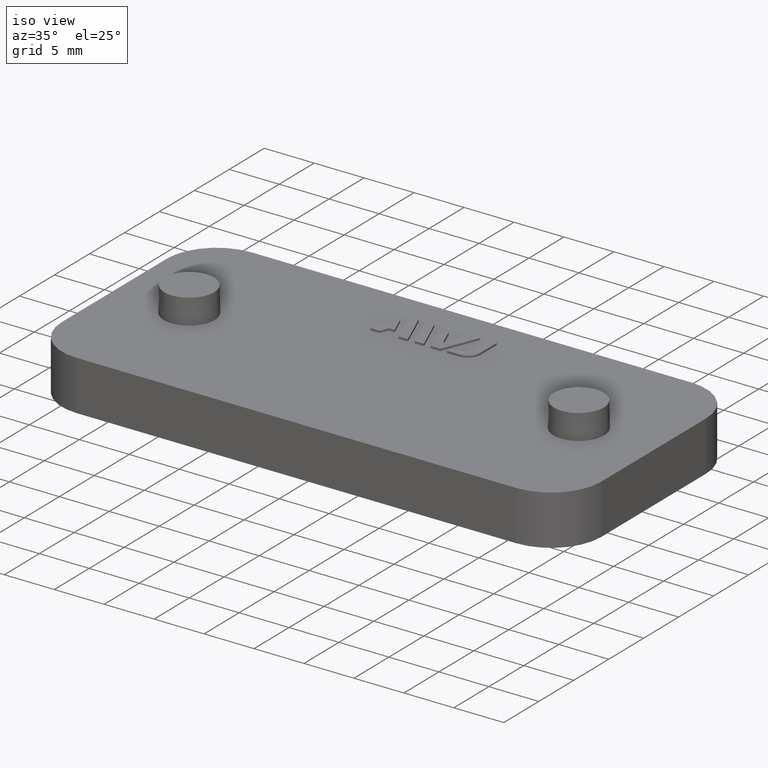
[diagram: clean part render]
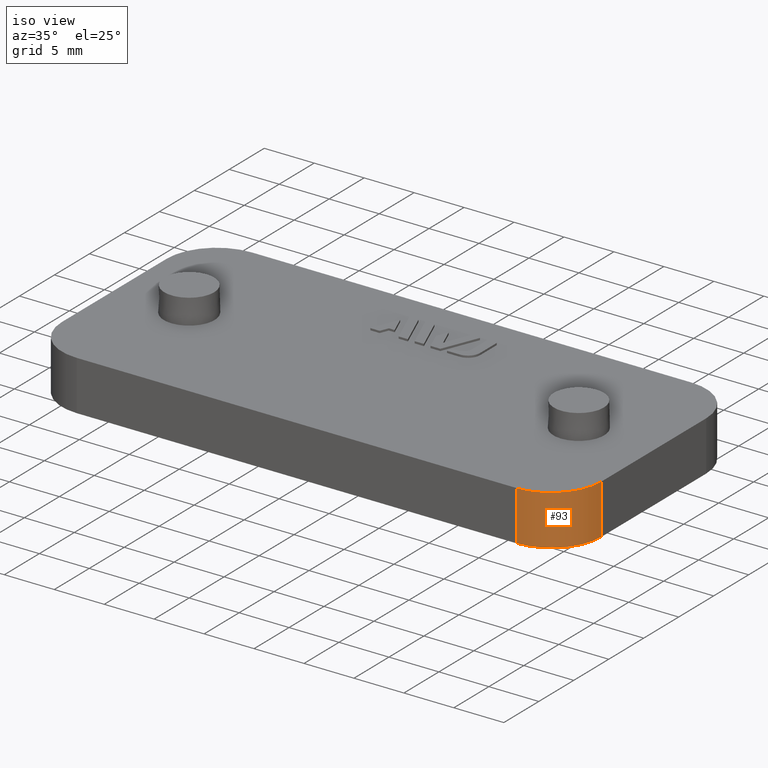
[diagram: same view with one face highlighted and labeled with its STEP entity id]
A machine part, iso view. The second image highlights one B-rep face of the part: STEP entity #93.
In plain terms, the highlighted cylindrical surface (partial cylindrical patch) has radius 5 mm, axis along (-0, 0, 1).
Its self-contained STEP definition (entity closure, byte-faithful):
#93 = ADVANCED_FACE( '', ( #460 ), #461, .T. );
#460 = FACE_OUTER_BOUND( '', #1112, .T. );
#461 = CYLINDRICAL_SURFACE( '', #1113, 5.00000000000000 );
#1112 = EDGE_LOOP( '', ( #2063, #2064, #2065, #2066 ) );
#1113 = AXIS2_PLACEMENT_3D( '', #2067, #2068, #2069 );
#2063 = ORIENTED_EDGE( '', *, *, #4252, .F. );
#2064 = ORIENTED_EDGE( '', *, *, #4398, .F. );
#2065 = ORIENTED_EDGE( '', *, *, #4127, .T. );
#2066 = ORIENTED_EDGE( '', *, *, #4146, .T. );
#2067 = CARTESIAN_POINT( '', ( 22.0000000000000, -7.50000000000000, 71.6812418606937 ) );
#2068 = DIRECTION( '', ( -1.60751816480226E-016, 1.81794180051289E-016, 1.00000000000000 ) );
#2069 = DIRECTION( '', ( 1.00000000000000, 4.62592926927150E-016, 1.60751816480226E-016 ) );
#4127 = EDGE_CURVE( '', #4907, #4905, #4908, .T. );
#4146 = EDGE_CURVE( '', #4905, #4944, #4945, .T. );
#4252 = EDGE_CURVE( '', #5152, #4944, #5154, .T. );
#4398 = EDGE_CURVE( '', #4907, #5152, #5434, .T. );
#4905 = VERTEX_POINT( '', #6186 );
#4907 = VERTEX_POINT( '', #6189 );
#4908 = CIRCLE( '', #6190, 5.00000000000000 );
#4944 = VERTEX_POINT( '', #6242 );
#4945 = LINE( '', #6243, #6244 );
#5152 = VERTEX_POINT( '', #6555 );
#5154 = CIRCLE( '', #6558, 5.00000000000000 );
#5434 = LINE( '', #6980, #6981 );
#6186 = CARTESIAN_POINT( '', ( 22.0000000000000, -12.5000000000000, 5.00000000000000 ) );
#6189 = CARTESIAN_POINT( '', ( 27.0000000000000, -7.49999999999999, 5.00000000000000 ) );
#6190 = AXIS2_PLACEMENT_3D( '', #8177, #8178, #8179 );
#6242 = CARTESIAN_POINT( '', ( 22.0000000000000, -12.5000000000000, 7.65378971138986E-016 ) );
#6243 = CARTESIAN_POINT( '', ( 22.0000000000000, -12.5000000000000, 71.6812418606937 ) );
#6244 = VECTOR( '', #8202, 1000.00000000000 );
#6555 = CARTESIAN_POINT( '', ( 27.0000000000000, -7.50000000000001, 4.59227382683392E-016 ) );
#6558 = AXIS2_PLACEMENT_3D( '', #8308, #8309, #8310 );
#6980 = CARTESIAN_POINT( '', ( 27.0000000000000, -7.49999999999997, 71.6812418606937 ) );
#6981 = VECTOR( '', #8462, 1000.00000000000 );
#8177 = CARTESIAN_POINT( '', ( 22.0000000000000, -7.50000000000001, 5.00000000000000 ) );
#8178 = DIRECTION( '', ( 0.000000000000000, -6.12303176911189E-017, -1.00000000000000 ) );
#8179 = DIRECTION( '', ( 0.000000000000000, 1.00000000000000, -6.12303176911189E-017 ) );
#8202 = DIRECTION( '', ( 1.60751816480226E-016, -1.81794180051289E-016, -1.00000000000000 ) );
#8308 = CARTESIAN_POINT( '', ( 22.0000000000000, -7.50000000000002, 7.39812128659062E-015 ) );
#8309 = DIRECTION( '', ( 0.000000000000000, -6.12303176911189E-017, -1.00000000000000 ) );
#8310 = DIRECTION( '', ( 0.000000000000000, 1.00000000000000, -6.12303176911189E-017 ) );
#8462 = DIRECTION( '', ( 1.60751816480226E-016, -1.81794180051289E-016, -1.00000000000000 ) );